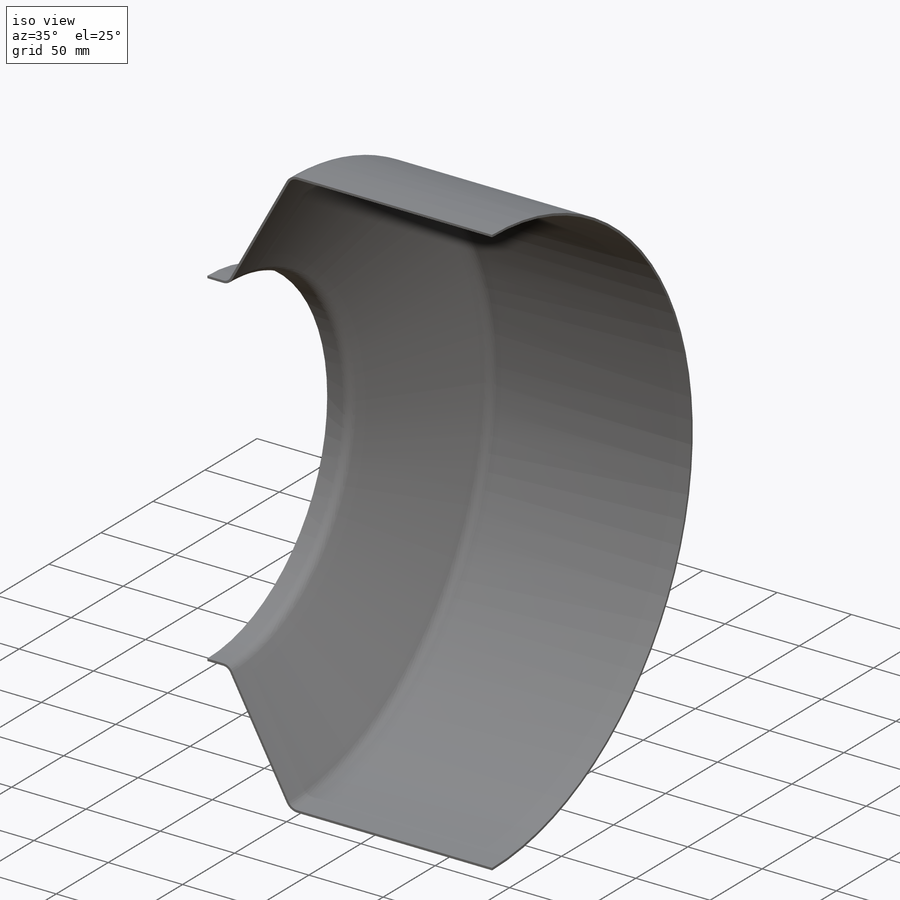
[diagram: iso view]
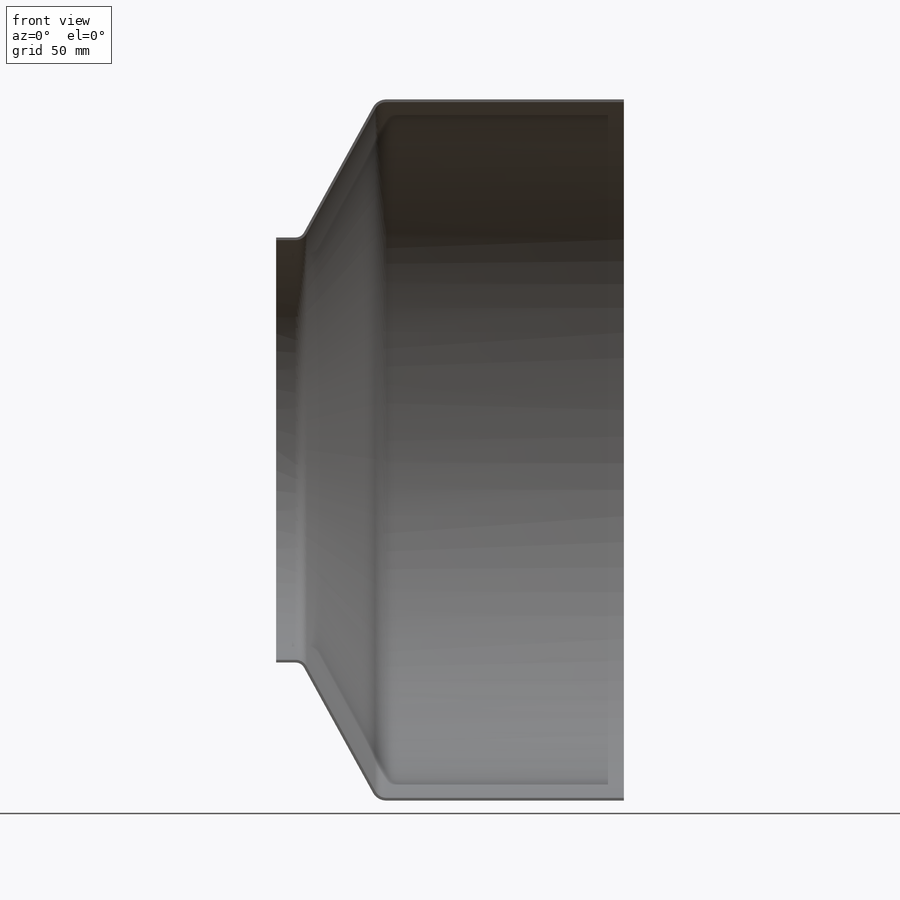
[diagram: front view]
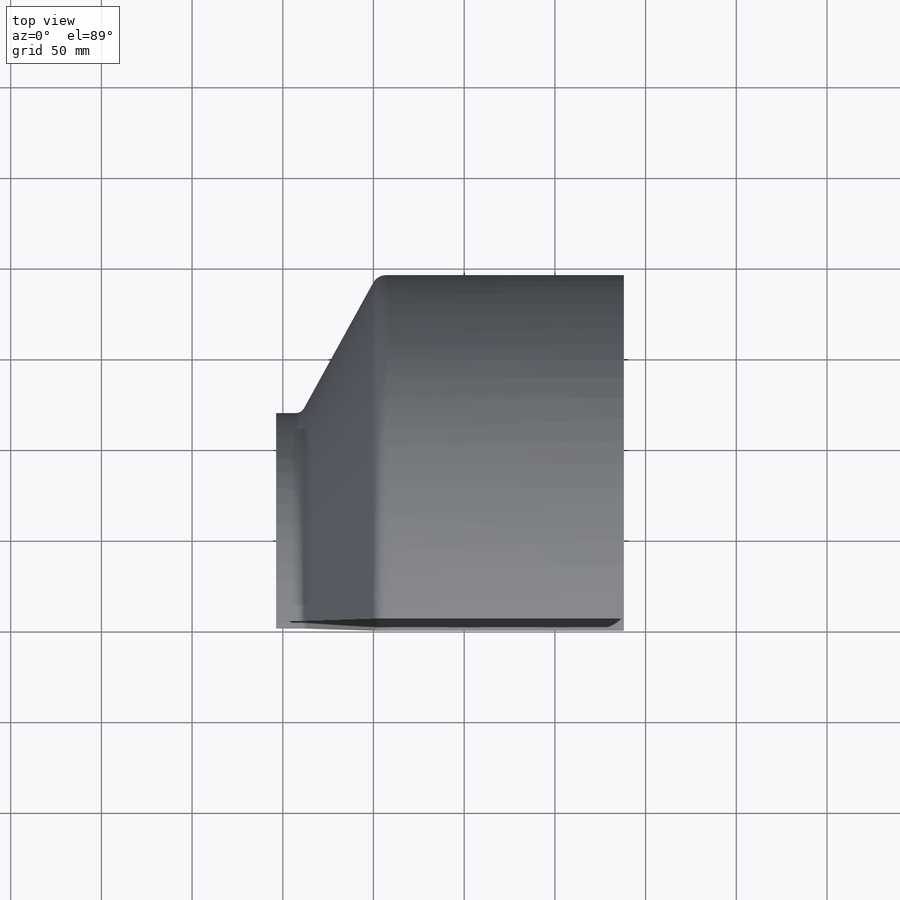
[diagram: top view]
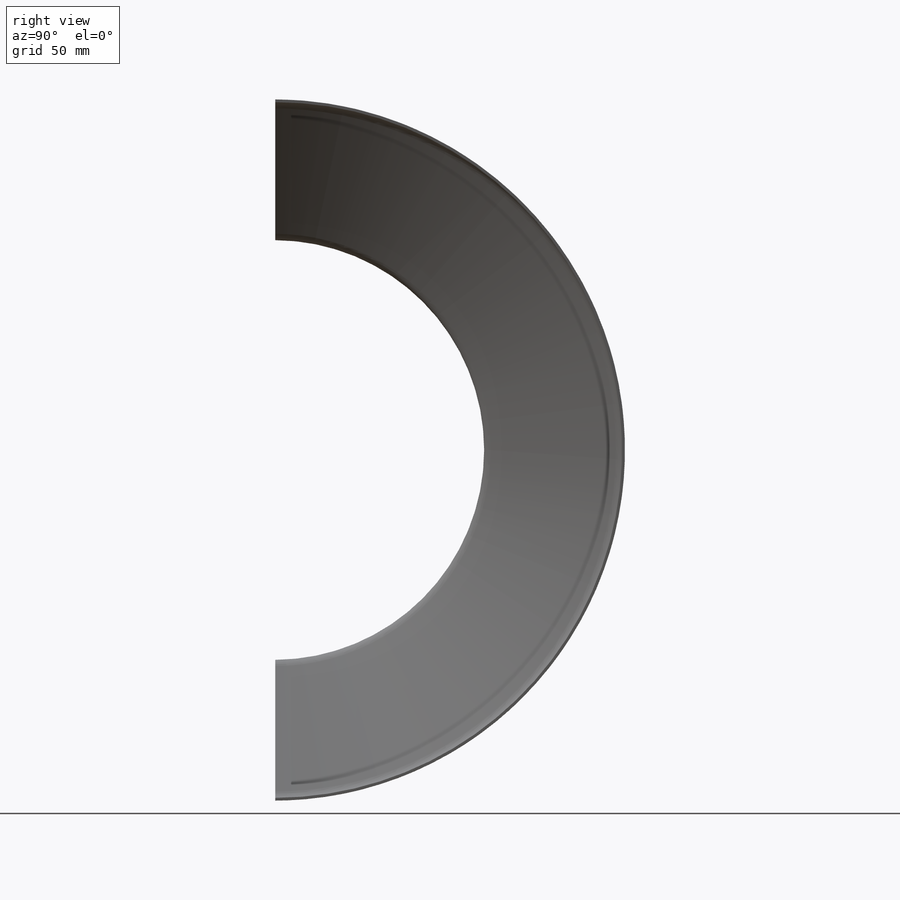
[diagram: right view]
SOLIDWORKS PART (.sldprt)
format: sldprt  version: not decoded by parser v0  size: 2,244,096 bytes
history: native  units: mm
features: sketch x21, plane x16, cut_extrude x15, fillet x8, pattern_circular x4, cut_revolve x2, mirror x2, material x1, extrude x1 + 2 further entries (+12 scaffold rows collapsed)
feature tree (84):
  scaffold x12  (default folders/planes/origin — collapsed)
  material  "Material <not specified>"
  plane  "Plane1"
  plane  "Plane2"
  plane  "Plane3"
  "Axis2"
  "Axis3"
  sketch  "Sketch1"  dims[c1.D9=3.0mm c1.D10=4.0mm c1.D2=6.7625mm c1.D7=4.5mm c1.D1=2.5mm c2.D2=~42.935967mm c3.D2=50.0deg c3.D3=~91.177867mm c4.D2=~100.269623mm c5.D2=~62.654091deg c5.D3=191.2625mm c5.D4=~104.165277mm c5.D5=125.0mm c5.D6=~60.834723mm c6.D4=188.0mm c6.D6=~46.36475mm c6.D1=~5.35288mm c6.D7=14.0mm c7.D1=6.5mm c7.D8=110.0mm c8.D1=~193.33025mm c8.D11=~14.60465mm c8.D6=~57.012213mm c9.D1=~14.686707mm c9.D5=117.5mm c9.D7=1.0mm c10.D5=~120.108474mm c10.D7=~74.340574mm c11.D7=~60.301597deg c11.D1=191.7625mm c11.D3=~57.012213mm c11.D4=~80.17119mm c12.D4=~61.150849deg c12.D5=~3.646559mm c12.D6=115.675mm c12.D7=188.0mm c12.D8=~7.106883mm c12.D2=1.5mm c12.D1=180.0deg c12.D3=1.5mm c13.D4=1.0mm c13.D7=0.0mm]
  plane  "Plane4"  Offset=181.628441mm
  sketch  "Sketch52"  dims[c1.D1=170.0mm c1.D6=2.0mm c1.D3=2.0mm c2.D1=185.0mm c2.D10=176.0mm c2.D11=2.0mm c2.D12=180.0mm c2.D13=~32.871342mm c3.D12=~6.029229mm c3.D2=20.0mm c3.D3=15.0mm c3.D4=~199.013361mm c4.D4=9.5deg c4.D1=172.0mm c4.D5=15.0mm c4.D7=10.0mm c4.D6=10.0mm c4.D8=15.1mm c4.D9=~208.06049mm c5.D9=5.375deg c5.D10=172.0mm c5.D4=~182.78153mm c6.D4=9.5deg c6.D3=20.0mm c6.D12=6.0mm c6.D1=~210.811214mm c7.D1=5.625deg c7.D2=~210.811214mm c8.D2=9.375deg c8.D1=~192.113891mm c9.D1=75.25deg c9.D2=~192.113891mm c10.D2=89.75deg]
  cut_extrude  "Disk 4 Mount Extrude"  Depth=7.75mm
  plane  "Plane19"  Offset=60.3mm
  sketch  "Sketch91"  dims[c1.D1=170.0mm c1.D6=2.0mm c1.D3=2.0mm c2.D1=185.0mm c2.D10=176.0mm c2.D11=2.0mm c2.D12=180.0mm c2.D13=~32.871342mm c3.D12=~6.029229mm c3.D2=20.0mm c3.D3=15.0mm c3.D4=~199.013361mm c4.D4=9.5deg c4.D1=172.0mm c4.D5=15.0mm c4.D7=10.0mm c4.D6=10.0mm c4.D8=15.1mm c4.D9=~208.06049mm c5.D9=6.3125deg c5.D10=172.0mm c5.D4=~182.78153mm c6.D4=9.5deg c6.D3=20.0mm c6.D12=6.0mm c6.D1=~210.811214mm c7.D1=5.625deg c7.D2=~210.811214mm c8.D2=9.375deg c8.D1=~210.811214mm c9.D1=8.4375deg c9.D2=~210.811214mm c10.D2=6.5625deg c10.D1=~192.607138mm c11.D1=75.25deg c11.D2=~192.607138mm c12.D2=89.75deg]
  cut_extrude  "Disk 3 Mount Extrude"  Depth=7.75mm
  plane  "Plane20"  Offset=120.6mm
  sketch  "Sketch92"  dims[c1.D1=170.0mm c1.D6=2.0mm c1.D3=2.0mm c2.D1=185.0mm c2.D10=176.0mm c2.D11=2.0mm c2.D12=180.0mm c2.D13=~32.871342mm c3.D12=~6.029229mm c3.D2=20.0mm c3.D3=15.0mm c3.D4=~199.013361mm c4.D4=9.5deg c4.D1=172.0mm c4.D5=15.0mm c4.D7=10.0mm c4.D6=10.0mm c4.D8=15.1mm c4.D9=~208.06049mm c5.D9=4.4375deg c5.D10=172.0mm c5.D4=~182.78153mm c6.D4=9.5deg c6.D3=20.0mm c6.D12=6.0mm c6.D1=~210.811214mm c7.D1=5.625deg c7.D2=~210.811214mm c8.D2=9.375deg c8.D1=~210.811214mm c9.D1=10.3125deg c9.D2=~210.811214mm c10.D2=4.6875deg c10.D1=~216.331056mm c11.D1=75.25deg c11.D2=~191.569211mm c12.D2=89.75deg]
  cut_extrude  "Disk 2 Mount Extrude"  Depth=7.75mm
  fillet  "Fillet9"  Radius=1mm
  plane  "Plane16"  Offset=0.728441mm
  sketch  "Sketch83"  dims[c1.D1=15.1mm c1.D2=~217.082341mm c2.D2=7.5deg c2.D3=~143.579453mm c3.D3=7.5deg c4.D3=~168.176578mm c5.D3=75.0deg c5.D4=~76.261281mm c6.D4=90.0deg]
  cut_extrude  "Disk 1 Mount Extrude"  Depth=7.75mm
  plane  "Plane10"
  sketch  "Sketch71"  dims[c1.D1=10.0mm c1.D2=130.0mm c2.D1=10.0mm c2.D3=~78.506966mm c3.D3=~28.849151deg]
  cut_revolve  "Cut-Revolve24"  Angle=32deg
  fillet  "Fillet2"  Radius=15mm
  pattern_circular  "CirPattern1"  Count=3 Angle=55deg
  plane  "Plane11"  Offset=70mm
  plane  "Plane13"
  plane  "Plane14"
  plane  "Plane15"
  sketch  "Sketch79"  dims[c1.D1=10.0mm c1.D2=130.0mm c2.D1=~82.116319mm c3.D1=~24.531991deg c4.D1=~82.116319mm c5.D1=~24.531991deg c5.D2=~50.725912mm c5.D3=~65.612105mm c5.D4=~112.954194mm c5.D5=~90.264536mm c6.D3=130.0mm c6.D2=10.0mm c6.D1=~82.116319mm c7.D1=~28.849151deg c7.D2=56.0mm]
  cut_revolve  "Cut-Revolve26"  Angle=2.5deg
  fillet  "Fillet3"  Radius=6.35mm
  fillet  "Fillet4"  Radius=5.4mm
  pattern_circular  "CirPattern2"  Count=2 Angle=165deg
  sketch  "Sketch80"  dims[c1.D5=200.0mm c1.D6=150.0mm c1.D1=~1.654657mm c2.D1=~5.978414deg c2.D2=~182.738009mm c3.D2=8.75deg c3.D3=~208.822355mm c4.D3=7.5deg c4.D4=~40.626397mm c5.D4=~5.978414deg c5.D2=50.0mm c6.D2=7.5deg c6.D6=20.0mm c6.D7=20.0mm c7.D2=20.0mm]
  cut_extrude  "Cut-Extrude9"  Depth=11.311296mm
  sketch  "Sketch88"
  cut_extrude  "Extrude5"  Depth=4.175mm
  sketch  "Sketch81"  dims[D1=0.5mm]
  cut_extrude  "Extrude1"  [1 undecoded]
  sketch  "Sketch82"  dims[c1.D1=~125.404961mm c1.D2=1.0mm c1.D3=217.8mm c2.D3=7.5deg c2.D4=20.0mm c2.D5=~213.13875mm c3.D5=7.5deg c3.D6=20.0mm c3.D7=217.8mm c4.D7=7.5deg c4.D8=20.0mm c4.D9=~8.725941mm c5.D9=~8.924724deg]
  cut_extrude  "Extrude2"  Depth=10.753441mm
  fillet  "Fillet5"  Radius=5mm
  sketch  "Sketch86"  dims[D5=3.0mm D1=~15.738152mm D2=~15.738152mm D3=~15.738152mm D4=~15.738152mm]
  extrude  "Extrude4"  Depth=1.5mm
  mirror  "Mirror6"
  fillet  "Fillet6"  Radius=3mm
  fillet  "Fillet7"  Radius=4.5mm
  sketch  "Sketch87"  dims[c1.D1=2.9464mm c1.D2=2.9464mm c1.D3=2.9464mm c1.D5=2.9464mm c2.D2=6.0mm c2.D3=70.0mm c2.D4=198.0mm c2.D5=80.0mm]
  cut_extrude  "Cut-Extrude10"  [1 undecoded]
  mirror  "Mirror7"
  plane  "Plane17"
  sketch  "Sketch89"  dims[c1.D1=5.6mm c1.D2=6.0mm c1.D4=6.0mm c2.D2=38.8mm c2.D3=~104.193191mm c2.D4=~4.210812mm c3.D2=~142.993191mm]
  cut_extrude  "Extrude6"  [1 undecoded]
  plane  "Plane22"
  sketch  "Sketch94"  dims[c1.D1=5.6mm c1.D2=6.0mm c1.D4=6.0mm c2.D2=38.8mm c2.D3=~104.193191mm c2.D4=~4.210812mm c3.D2=~104.193191mm]
  cut_extrude  "Extrude9"  [1 undecoded]
  pattern_circular  "CirPattern4"  Count=2 Angle=165deg
  plane  "Plane18"
  sketch  "Sketch90"  dims[D1=8.0mm]
  cut_extrude  "Extrude7"  [1 undecoded]
  plane  "Plane21"
  sketch  "Sketch93"  dims[D1=8.0mm]
  cut_extrude  "Extrude8"  [1 undecoded]
  pattern_circular  "CirPattern3"  Count=2 Angle=137deg
  sketch  "Sketch96"  dims[D1=0.0mm D2=0.0mm D3=0.0mm]
  cut_extrude  "Cut-Extrude11"  [1 undecoded]
  sketch  "Sketch98"
  cut_extrude  "Cut-Extrude12"  [1 undecoded]
  fillet  "Fillet10"  Radius=1mm
  sketch  "Sketch97"  dims[c1.D1=~248.931857mm c2.D1=~3.757697deg c2.D2=~248.931857mm c3.D2=~11.242303deg c3.D3=~248.931857mm c4.D3=~12.459359deg c4.D4=~248.931857mm c5.D4=~92.540641deg c5.D5=~248.931857mm c6.D5=~93.757697deg c6.D6=~248.931857mm c7.D6=~3.757697deg c7.D7=~248.931857mm c8.D7=~11.242303deg c8.D8=~248.931857mm c9.D8=~12.459359deg c9.D9=~248.931857mm c10.D9=~77.540641deg c10.D10=~248.931857mm c11.D10=~78.757697deg]
  sketch  "Sketch99"  dims[c1.D1=~410.33249mm c2.D1=~2.635793deg c2.D2=~410.33249mm c3.D2=~3.368589deg c3.D3=~410.33249mm c4.D3=~7.881411deg c4.D4=~410.33249mm c5.D4=~8.614207deg c5.D5=~410.33249mm c6.D5=~92.385793deg c6.D6=~410.33249mm c7.D6=~93.118589deg c7.D7=~410.33249mm c8.D7=~6.385793deg c8.D8=~410.33249mm c9.D8=~7.118589deg c9.D9=~410.33249mm c10.D9=~11.631411deg c10.D10=~410.33249mm c11.D10=~12.364207deg c11.D11=~410.33249mm c12.D11=~81.635793deg c12.D12=~410.33249mm c13.D12=~82.368589deg]
decode coverage: 41 of 53 modeling features carry decoded parameters; 2 rows unclassified (native names shown)
note: ~ marks probable driven/reference dimensions
note: 8 parameter values undecoded
summary: no parameter record found for 8 features
note: suppression state not decoded; provenance and decode notes live in map.json
